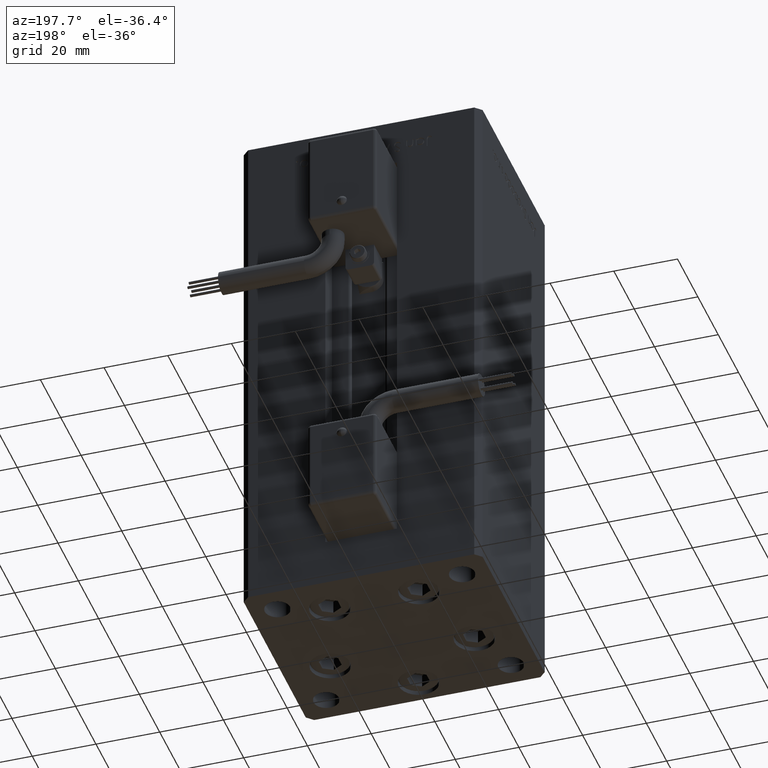
[diagram: clean part render]
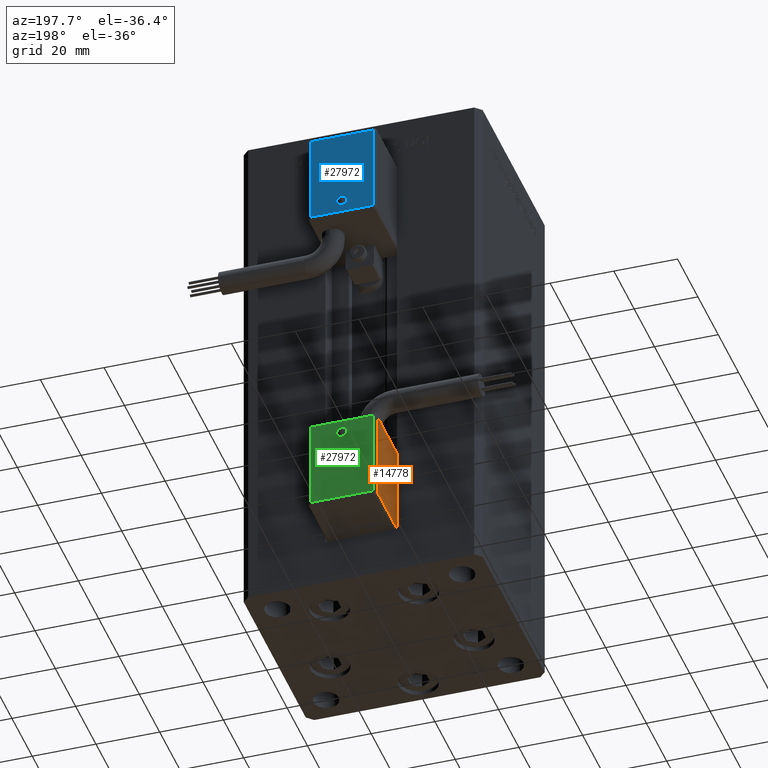
[diagram: same view with three faces highlighted in distinct colors, each labeled with its STEP entity id]
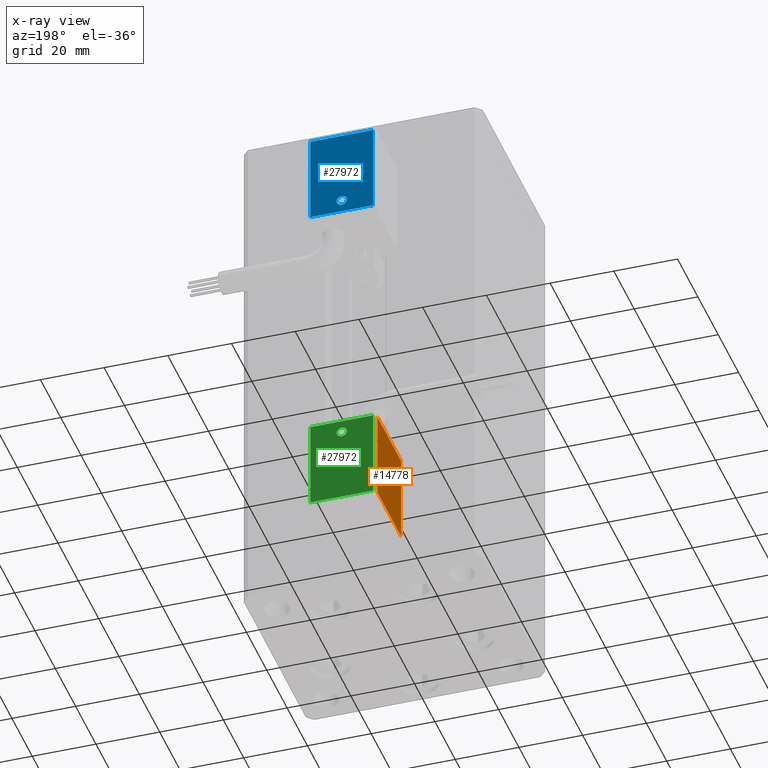
[diagram: x-ray of the same camera — body ghosted, the three highlighted faces saturated]
A machine part, auxiliary view with three faces highlighted in distinct colors.
The next image is the same camera in x-ray (body ghosted, the three faces saturated) — at least one of them is partly hidden behind the body in this view.
Their STEP definitions:

[orange] entity #14778 — the highlighted planar face has unit normal (-1, 0, 0).
#561 = CARTESIAN_POINT ( 'NONE',  ( 10.80000000000000071, 50.50000000000000000, -54.00000000000000000 ) ) ;
#1146 = EDGE_CURVE ( 'NONE', #36640, #28014, #20354, .T. ) ;
#1954 = ORIENTED_EDGE ( 'NONE', *, *, #53512, .T. ) ;
#2615 = CARTESIAN_POINT ( 'NONE',  ( 10.80000000000000071, 50.50000000000000000, -26.00000000000000000 ) ) ;
#5535 = LINE ( 'NONE', #35796, #38338 ) ;
#6141 = LINE ( 'NONE', #32227, #50750 ) ;
#7051 = CARTESIAN_POINT ( 'NONE',  ( 10.80000000000000071, 50.50000000000000000, -25.00000000000000000 ) ) ;
#8220 = VERTEX_POINT ( 'NONE', #12799 ) ;
#11675 = PLANE ( 'NONE',  #44347 ) ;
#11942 = DIRECTION ( 'NONE',  ( 0.000000000000000000, -2.220446049250000002E-16, 1.000000000000000000 ) ) ;
#12799 = CARTESIAN_POINT ( 'NONE',  ( 10.80000000000000071, 27.00000000000000000, -26.00000000000000000 ) ) ;
#13832 = DIRECTION ( 'NONE',  ( -3.108624468950000014E-32, 1.000000000000000000, 1.400000000000000069E-16 ) ) ;
#14778 = ADVANCED_FACE ( 'NONE', ( #20842 ), #11675, .T. ) ;
#14997 = DIRECTION ( 'NONE',  ( 2.220446049250000002E-16, 1.200000000000000024E-16, -1.000000000000000000 ) ) ;
#20354 = LINE ( 'NONE', #7051, #40798 ) ;
#20842 = FACE_OUTER_BOUND ( 'NONE', #54577, .T. ) ;
#21390 = VECTOR ( 'NONE', #50829, 1000.000000000000000 ) ;
#24030 = ORIENTED_EDGE ( 'NONE', *, *, #54391, .T. ) ;
#27225 = CARTESIAN_POINT ( 'NONE',  ( 10.80000000000000071, 26.00000000000000000, -26.00000000000000000 ) ) ;
#28014 = VERTEX_POINT ( 'NONE', #2615 ) ;
#29807 = ORIENTED_EDGE ( 'NONE', *, *, #47328, .T. ) ;
#31400 = LINE ( 'NONE', #27225, #21390 ) ;
#32227 = CARTESIAN_POINT ( 'NONE',  ( 10.80000000000000071, 27.00000000000000000, -55.00000000000000000 ) ) ;
#35796 = CARTESIAN_POINT ( 'NONE',  ( 10.80000000000000071, 51.50000000000000000, -54.00000000000000000 ) ) ;
#36225 = DIRECTION ( 'NONE',  ( -2.220446049250000002E-16, -1.200000000000000024E-16, 1.000000000000000000 ) ) ;
#36640 = VERTEX_POINT ( 'NONE', #561 ) ;
#38338 = VECTOR ( 'NONE', #13832, 1000.000000000000000 ) ;
#40798 = VECTOR ( 'NONE', #36225, 1000.000000000000000 ) ;
#42261 = DIRECTION ( 'NONE',  ( 1.000000000000000000, 4.930380657629929601E-32, 1.094764425253299406E-47 ) ) ;
#44347 = AXIS2_PLACEMENT_3D ( 'NONE', #54750, #42261, #11942 ) ;
#45596 = ORIENTED_EDGE ( 'NONE', *, *, #1146, .T. ) ;
#47328 = EDGE_CURVE ( 'NONE', #28014, #8220, #31400, .T. ) ;
#50750 = VECTOR ( 'NONE', #14997, 1000.000000000000000 ) ;
#50829 = DIRECTION ( 'NONE',  ( 3.108624468950000014E-32, -1.000000000000000000, -1.400000000000000069E-16 ) ) ;
#51218 = CARTESIAN_POINT ( 'NONE',  ( 10.80000000000000071, 27.00000000000000000, -54.00000000000000000 ) ) ;
#51345 = VERTEX_POINT ( 'NONE', #51218 ) ;
#53512 = EDGE_CURVE ( 'NONE', #51345, #36640, #5535, .T. ) ;
#54391 = EDGE_CURVE ( 'NONE', #8220, #51345, #6141, .T. ) ;
#54577 = EDGE_LOOP ( 'NONE', ( #29807, #24030, #1954, #45596 ) ) ;
#54750 = CARTESIAN_POINT ( 'NONE',  ( 10.80000000000000071, 26.00000000000000000, -55.00000000000000000 ) ) ;

[blue] entity #27972 — the highlighted planar face has unit normal (0, 1, 0).
#210 = VERTEX_POINT ( 'NONE', #19468 ) ;
#851 = ORIENTED_EDGE ( 'NONE', *, *, #20304, .T. ) ;
#862 = VECTOR ( 'NONE', #39307, 1000.000000000000000 ) ;
#974 = DIRECTION ( 'NONE',  ( 0.000000000000000000, 0.000000000000000000, 1.000000000000000000 ) ) ;
#1255 = LINE ( 'NONE', #9285, #862 ) ;
#2370 = EDGE_CURVE ( 'NONE', #19910, #17021, #52255, .T. ) ;
#2754 = CARTESIAN_POINT ( 'NONE',  ( 9.799999999999998934, 51.59999999999999432, -26.00000000000000000 ) ) ;
#3791 = AXIS2_PLACEMENT_3D ( 'NONE', #9562, #6232, #26507 ) ;
#4155 = ORIENTED_EDGE ( 'NONE', *, *, #2370, .T. ) ;
#5323 = EDGE_CURVE ( 'NONE', #41528, #19910, #1255, .T. ) ;
#5391 = VECTOR ( 'NONE', #47270, 1000.000000000000000 ) ;
#6172 = VECTOR ( 'NONE', #47765, 1000.000000000000000 ) ;
#6232 = DIRECTION ( 'NONE',  ( -0.000000000000000000, 1.000000000000000000, 2.478176394252581634E-16 ) ) ;
#7071 = AXIS2_PLACEMENT_3D ( 'NONE', #39026, #9287, #974 ) ;
#9285 = CARTESIAN_POINT ( 'NONE',  ( 9.799999999999998934, 51.60000000000000142, -54.00000000000000000 ) ) ;
#9287 = DIRECTION ( 'NONE',  ( 0.000000000000000000, -1.000000000000000000, -2.478176394252581634E-16 ) ) ;
#9562 = CARTESIAN_POINT ( 'NONE',  ( -2.664535259099999904E-33, 51.59999999999998721, 1.277460843040079085E-14 ) ) ;
#9960 = LINE ( 'NONE', #31345, #6172 ) ;
#10133 = EDGE_LOOP ( 'NONE', ( #34665, #45798, #28573, #4155 ) ) ;
#10561 = EDGE_CURVE ( 'NONE', #21997, #210, #13965, .T. ) ;
#11379 = VECTOR ( 'NONE', #28655, 1000.000000000000000 ) ;
#11707 = CARTESIAN_POINT ( 'NONE',  ( -9.799999999999998934, 51.59999999999999432, -26.00000000000000000 ) ) ;
#12164 = EDGE_CURVE ( 'NONE', #17021, #14157, #36748, .T. ) ;
#13884 = CARTESIAN_POINT ( 'NONE',  ( -9.799999999999998934, 51.60000000000000142, -54.00000000000000000 ) ) ;
#13965 = CIRCLE ( 'NONE', #45910, 1.594260539142210220 ) ;
#14157 = VERTEX_POINT ( 'NONE', #2754 ) ;
#16473 = CARTESIAN_POINT ( 'NONE',  ( -9.799999999999998934, 51.59999999999999432, -26.00000000000000000 ) ) ;
#17021 = VERTEX_POINT ( 'NONE', #16473 ) ;
#17903 = CARTESIAN_POINT ( 'NONE',  ( 9.799999999999998934, 51.60000000000000142, -54.00000000000000000 ) ) ;
#19468 = CARTESIAN_POINT ( 'NONE',  ( 1.067120849106190655E-14, 51.60000000000000142, -48.40573946085779511 ) ) ;
#19754 = EDGE_CURVE ( 'NONE', #14157, #41528, #9960, .T. ) ;
#19910 = VERTEX_POINT ( 'NONE', #51044 ) ;
#20304 = EDGE_CURVE ( 'NONE', #210, #21997, #35880, .T. ) ;
#21247 = EDGE_LOOP ( 'NONE', ( #52044, #851 ) ) ;
#21997 = VERTEX_POINT ( 'NONE', #32139 ) ;
#22876 = FACE_OUTER_BOUND ( 'NONE', #10133, .T. ) ;
#26422 = CARTESIAN_POINT ( 'NONE',  ( 1.122044604924999863E-14, 51.60000000000000142, -50.00000000000000000 ) ) ;
#26507 = DIRECTION ( 'NONE',  ( 0.000000000000000000, -2.478176394252581634E-16, 1.000000000000000000 ) ) ;
#27972 = ADVANCED_FACE ( 'NONE', ( #47927, #22876 ), #31496, .T. ) ;
#28573 = ORIENTED_EDGE ( 'NONE', *, *, #5323, .T. ) ;
#28655 = DIRECTION ( 'NONE',  ( 1.000000000000000000, 0.000000000000000000, 0.000000000000000000 ) ) ;
#31345 = CARTESIAN_POINT ( 'NONE',  ( 9.799999999999998934, 51.59999999999999432, -26.00000000000000000 ) ) ;
#31496 = PLANE ( 'NONE',  #3791 ) ;
#32139 = CARTESIAN_POINT ( 'NONE',  ( 1.157444300081134802E-14, 51.60000000000000142, -51.59426053914221200 ) ) ;
#34665 = ORIENTED_EDGE ( 'NONE', *, *, #12164, .T. ) ;
#35880 = CIRCLE ( 'NONE', #7071, 1.594260539142210220 ) ;
#36748 = LINE ( 'NONE', #11707, #11379 ) ;
#38403 = DIRECTION ( 'NONE',  ( 0.000000000000000000, 0.000000000000000000, 1.000000000000000000 ) ) ;
#38952 = DIRECTION ( 'NONE',  ( 0.000000000000000000, -1.000000000000000000, -2.478176394252581634E-16 ) ) ;
#39026 = CARTESIAN_POINT ( 'NONE',  ( 1.122044604924999863E-14, 51.60000000000000142, -50.00000000000000000 ) ) ;
#39307 = DIRECTION ( 'NONE',  ( -1.000000000000000000, 0.000000000000000000, 0.000000000000000000 ) ) ;
#41528 = VERTEX_POINT ( 'NONE', #17903 ) ;
#45798 = ORIENTED_EDGE ( 'NONE', *, *, #19754, .T. ) ;
#45910 = AXIS2_PLACEMENT_3D ( 'NONE', #26422, #38952, #38403 ) ;
#47270 = DIRECTION ( 'NONE',  ( 0.000000000000000000, -2.478176394252581634E-16, 1.000000000000000000 ) ) ;
#47765 = DIRECTION ( 'NONE',  ( 0.000000000000000000, 2.478176394252581634E-16, -1.000000000000000000 ) ) ;
#47927 = FACE_BOUND ( 'NONE', #21247, .T. ) ;
#51044 = CARTESIAN_POINT ( 'NONE',  ( -9.799999999999998934, 51.60000000000000142, -54.00000000000000000 ) ) ;
#52044 = ORIENTED_EDGE ( 'NONE', *, *, #10561, .T. ) ;
#52255 = LINE ( 'NONE', #13884, #5391 ) ;

[green] entity #27972 — the highlighted planar face has unit normal (-0, 1, -0).
#210 = VERTEX_POINT ( 'NONE', #19468 ) ;
#851 = ORIENTED_EDGE ( 'NONE', *, *, #20304, .T. ) ;
#862 = VECTOR ( 'NONE', #39307, 1000.000000000000000 ) ;
#974 = DIRECTION ( 'NONE',  ( 0.000000000000000000, 0.000000000000000000, 1.000000000000000000 ) ) ;
#1255 = LINE ( 'NONE', #9285, #862 ) ;
#2370 = EDGE_CURVE ( 'NONE', #19910, #17021, #52255, .T. ) ;
#2754 = CARTESIAN_POINT ( 'NONE',  ( 9.799999999999998934, 51.59999999999999432, -26.00000000000000000 ) ) ;
#3791 = AXIS2_PLACEMENT_3D ( 'NONE', #9562, #6232, #26507 ) ;
#4155 = ORIENTED_EDGE ( 'NONE', *, *, #2370, .T. ) ;
#5323 = EDGE_CURVE ( 'NONE', #41528, #19910, #1255, .T. ) ;
#5391 = VECTOR ( 'NONE', #47270, 1000.000000000000000 ) ;
#6172 = VECTOR ( 'NONE', #47765, 1000.000000000000000 ) ;
#6232 = DIRECTION ( 'NONE',  ( -0.000000000000000000, 1.000000000000000000, 2.478176394252581634E-16 ) ) ;
#7071 = AXIS2_PLACEMENT_3D ( 'NONE', #39026, #9287, #974 ) ;
#9285 = CARTESIAN_POINT ( 'NONE',  ( 9.799999999999998934, 51.60000000000000142, -54.00000000000000000 ) ) ;
#9287 = DIRECTION ( 'NONE',  ( 0.000000000000000000, -1.000000000000000000, -2.478176394252581634E-16 ) ) ;
#9562 = CARTESIAN_POINT ( 'NONE',  ( -2.664535259099999904E-33, 51.59999999999998721, 1.277460843040079085E-14 ) ) ;
#9960 = LINE ( 'NONE', #31345, #6172 ) ;
#10133 = EDGE_LOOP ( 'NONE', ( #34665, #45798, #28573, #4155 ) ) ;
#10561 = EDGE_CURVE ( 'NONE', #21997, #210, #13965, .T. ) ;
#11379 = VECTOR ( 'NONE', #28655, 1000.000000000000000 ) ;
#11707 = CARTESIAN_POINT ( 'NONE',  ( -9.799999999999998934, 51.59999999999999432, -26.00000000000000000 ) ) ;
#12164 = EDGE_CURVE ( 'NONE', #17021, #14157, #36748, .T. ) ;
#13884 = CARTESIAN_POINT ( 'NONE',  ( -9.799999999999998934, 51.60000000000000142, -54.00000000000000000 ) ) ;
#13965 = CIRCLE ( 'NONE', #45910, 1.594260539142210220 ) ;
#14157 = VERTEX_POINT ( 'NONE', #2754 ) ;
#16473 = CARTESIAN_POINT ( 'NONE',  ( -9.799999999999998934, 51.59999999999999432, -26.00000000000000000 ) ) ;
#17021 = VERTEX_POINT ( 'NONE', #16473 ) ;
#17903 = CARTESIAN_POINT ( 'NONE',  ( 9.799999999999998934, 51.60000000000000142, -54.00000000000000000 ) ) ;
#19468 = CARTESIAN_POINT ( 'NONE',  ( 1.067120849106190655E-14, 51.60000000000000142, -48.40573946085779511 ) ) ;
#19754 = EDGE_CURVE ( 'NONE', #14157, #41528, #9960, .T. ) ;
#19910 = VERTEX_POINT ( 'NONE', #51044 ) ;
#20304 = EDGE_CURVE ( 'NONE', #210, #21997, #35880, .T. ) ;
#21247 = EDGE_LOOP ( 'NONE', ( #52044, #851 ) ) ;
#21997 = VERTEX_POINT ( 'NONE', #32139 ) ;
#22876 = FACE_OUTER_BOUND ( 'NONE', #10133, .T. ) ;
#26422 = CARTESIAN_POINT ( 'NONE',  ( 1.122044604924999863E-14, 51.60000000000000142, -50.00000000000000000 ) ) ;
#26507 = DIRECTION ( 'NONE',  ( 0.000000000000000000, -2.478176394252581634E-16, 1.000000000000000000 ) ) ;
#27972 = ADVANCED_FACE ( 'NONE', ( #47927, #22876 ), #31496, .T. ) ;
#28573 = ORIENTED_EDGE ( 'NONE', *, *, #5323, .T. ) ;
#28655 = DIRECTION ( 'NONE',  ( 1.000000000000000000, 0.000000000000000000, 0.000000000000000000 ) ) ;
#31345 = CARTESIAN_POINT ( 'NONE',  ( 9.799999999999998934, 51.59999999999999432, -26.00000000000000000 ) ) ;
#31496 = PLANE ( 'NONE',  #3791 ) ;
#32139 = CARTESIAN_POINT ( 'NONE',  ( 1.157444300081134802E-14, 51.60000000000000142, -51.59426053914221200 ) ) ;
#34665 = ORIENTED_EDGE ( 'NONE', *, *, #12164, .T. ) ;
#35880 = CIRCLE ( 'NONE', #7071, 1.594260539142210220 ) ;
#36748 = LINE ( 'NONE', #11707, #11379 ) ;
#38403 = DIRECTION ( 'NONE',  ( 0.000000000000000000, 0.000000000000000000, 1.000000000000000000 ) ) ;
#38952 = DIRECTION ( 'NONE',  ( 0.000000000000000000, -1.000000000000000000, -2.478176394252581634E-16 ) ) ;
#39026 = CARTESIAN_POINT ( 'NONE',  ( 1.122044604924999863E-14, 51.60000000000000142, -50.00000000000000000 ) ) ;
#39307 = DIRECTION ( 'NONE',  ( -1.000000000000000000, 0.000000000000000000, 0.000000000000000000 ) ) ;
#41528 = VERTEX_POINT ( 'NONE', #17903 ) ;
#45798 = ORIENTED_EDGE ( 'NONE', *, *, #19754, .T. ) ;
#45910 = AXIS2_PLACEMENT_3D ( 'NONE', #26422, #38952, #38403 ) ;
#47270 = DIRECTION ( 'NONE',  ( 0.000000000000000000, -2.478176394252581634E-16, 1.000000000000000000 ) ) ;
#47765 = DIRECTION ( 'NONE',  ( 0.000000000000000000, 2.478176394252581634E-16, -1.000000000000000000 ) ) ;
#47927 = FACE_BOUND ( 'NONE', #21247, .T. ) ;
#51044 = CARTESIAN_POINT ( 'NONE',  ( -9.799999999999998934, 51.60000000000000142, -54.00000000000000000 ) ) ;
#52044 = ORIENTED_EDGE ( 'NONE', *, *, #10561, .T. ) ;
#52255 = LINE ( 'NONE', #13884, #5391 ) ;